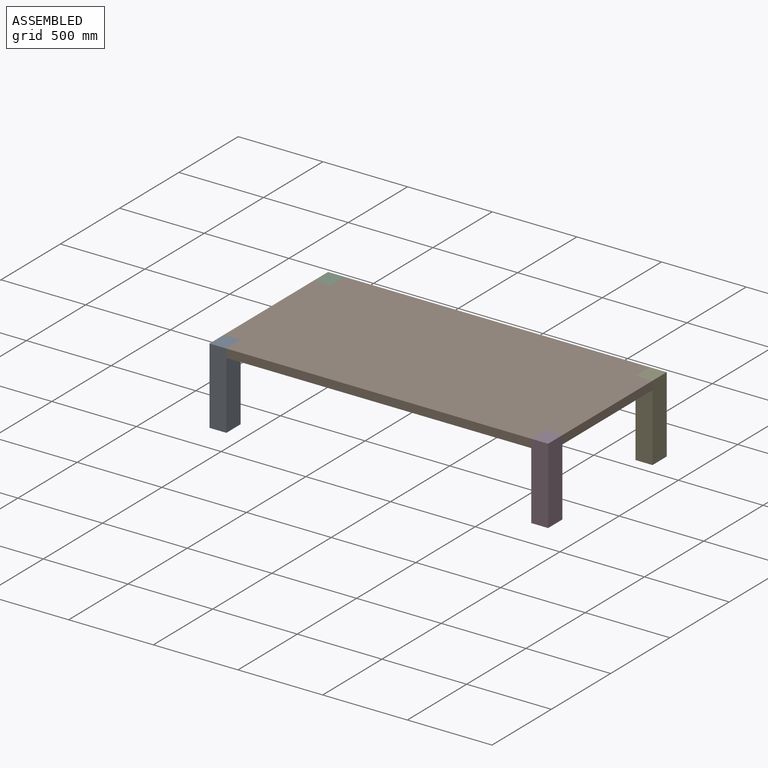
[diagram: assembled view]
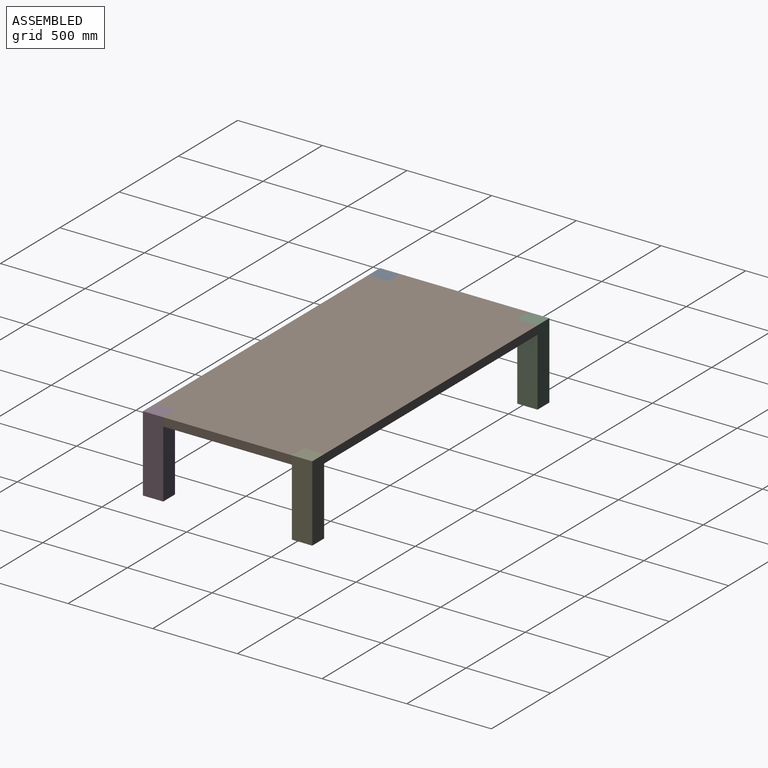
[diagram: assembled view, second angle]
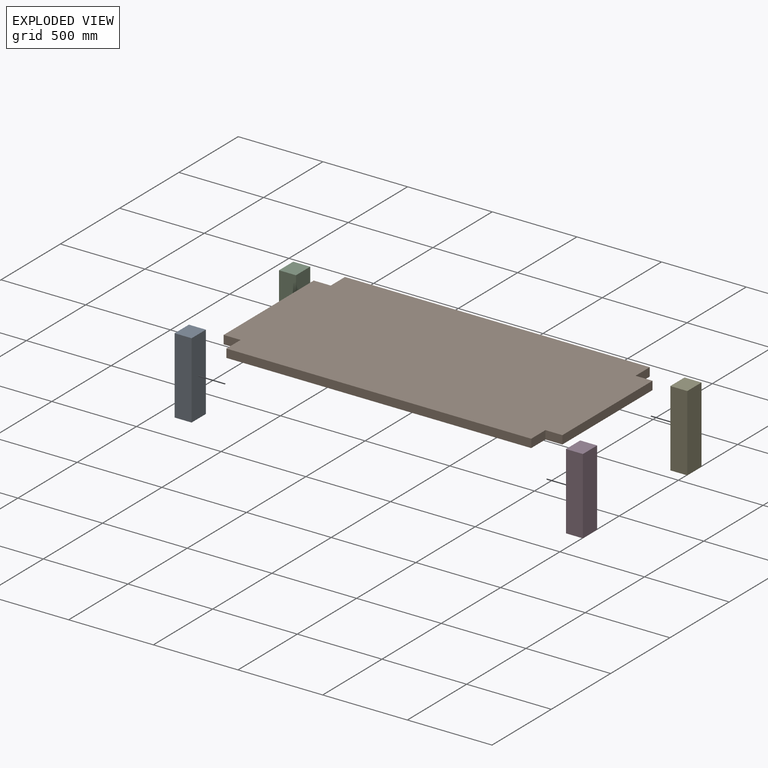
[diagram: exploded view]
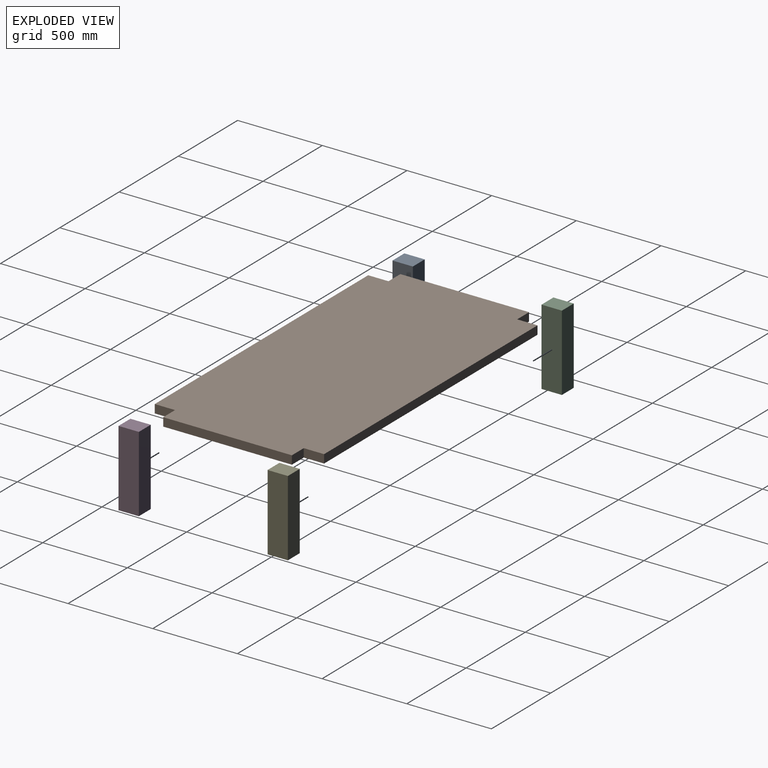
[diagram: exploded view, second angle]
ASSEMBLY  parts=5 mates=4
PART A: 6 faces, bbox 120x450x100 mm
  f0: plane 450x100mm, normal (-1,0,0), area 45000mm2, adj f1,f3,f4,f5
  f1: plane 450x120mm, normal (0,0,-1), area 54000mm2, adj f0,f2,f4,f5
  f2: plane 450x100mm, normal (1,0,0), area 45000mm2, adj f1,f3,f4,f5
  f3: plane 450x120mm, normal (0,0,1), area 54000mm2, adj f0,f2,f4,f5
  f4: plane 120x100mm, normal (0,-1,0), area 12000mm2, adj f0,f1,f2,f3
  f5: plane 120x100mm, normal (0,1,0), area 12000mm2, adj f0,f1,f2,f3
PART B: 14 faces, bbox 2000x1000x50 mm
  f0: plane 2000x1000mm, normal (0,0,-1), area 1952000mm2, adj f1,f3,f4,f5,f6,f7,f8,f9
  f1: plane 1800x50mm, normal (0,1,0), area 90000mm2, adj f0,f2,f9,f12
  f2: plane 2000x1000mm, normal (0,0,1), area 1952000mm2, adj f1,f3,f4,f5,f6,f7,f8,f9
  f3: plane 1800x50mm, normal (0,-1,0), area 90000mm2, adj f0,f2,f6,f10
  f4: plane 760x50mm, normal (1,0,0), area 38000mm2, adj f0,f2,f11,f13
  f5: plane 760x50mm, normal (-1,0,0), area 38000mm2, adj f0,f2,f7,f8
  f6: plane 120x50mm, normal (-1,0,0), area 6000mm2, adj f0,f2,f3,f7
  f7: plane 100x50mm, normal (0,-1,0), area 5000mm2, adj f0,f2,f5,f6
  f8: plane 100x50mm, normal (0,1,0), area 5000mm2, adj f0,f2,f5,f9
  f9: plane 120x50mm, normal (-1,0,0), area 6000mm2, adj f0,f1,f2,f8
  f10: plane 120x50mm, normal (1,0,0), area 6000mm2, adj f0,f2,f3,f11
  f11: plane 100x50mm, normal (0,-1,0), area 5000mm2, adj f0,f2,f4,f10
  f12: plane 120x50mm, normal (1,0,0), area 6000mm2, adj f0,f1,f2,f13
  f13: plane 100x50mm, normal (0,1,0), area 5000mm2, adj f0,f2,f4,f12
PART C: same geometry as A
PART D: same geometry as A
PART E: same geometry as A
PLACE A rot(axis=(-0.58,0.58,-0.58),120deg) t=(-1159.87,-750.22,597.66)mm
PLACE B t=(-1213.54,-882.74,997.66)mm
PLACE C rot(axis=(-0.58,0.58,-0.58),120deg) t=(-1159.87,129.78,597.66)mm
PLACE D rot(axis=(0.58,-0.58,-0.58),120deg) t=(840.13,-750.22,1047.66)mm
PLACE E rot(axis=(0.58,-0.58,-0.58),120deg) t=(840.13,129.78,1047.66)mm
MATE fastened A.f3 <-> B.f6  axis (1,0,0) through (-1059.87,-810.22,1047.66)mm
MATE fastened E.f3 <-> B.f12  axis (-1,0,0) through (740.13,69.78,1047.66)mm
MATE fastened D.f3 <-> B.f10  axis (-1,0,0) through (740.13,-810.22,1047.66)mm
MATE fastened C.f3 <-> B.f9  axis (1,0,0) through (-1059.87,69.78,1047.66)mm
